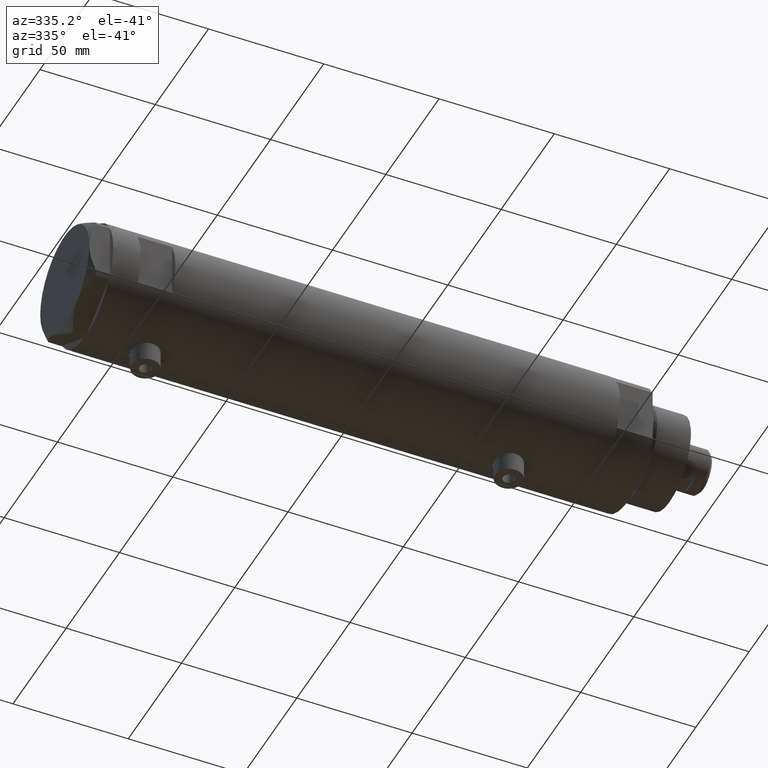
[diagram: clean part render]
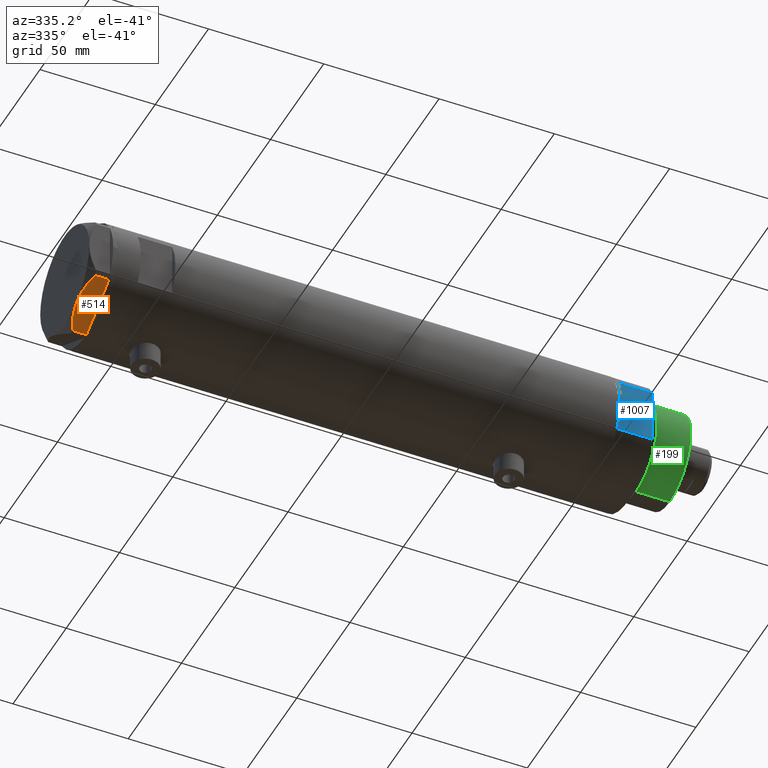
[diagram: same view with three faces highlighted in distinct colors, each labeled with its STEP entity id]
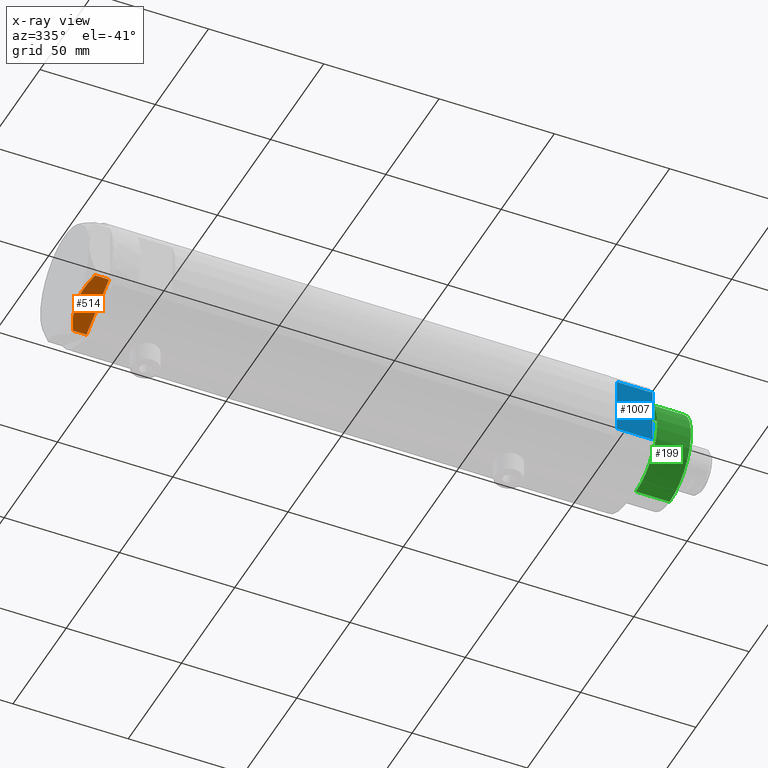
[diagram: x-ray of the same camera — body ghosted, the three highlighted faces saturated]
A machine part, auxiliary view with three faces highlighted in distinct colors.
The next image is the same camera in x-ray (body ghosted, the three faces saturated) — at least one of them is partly hidden behind the body in this view.
Their STEP definitions:

[orange] entity #514 — the highlighted planar face has unit normal (0, 0.5, 0.866).
#180 = ORIENTED_EDGE ( 'NONE', *, *, #4967, .T. ) ;
#218 = VECTOR ( 'NONE', #2629, 1000.000000000000227 ) ;
#244 = CARTESIAN_POINT ( 'NONE',  ( -11.04134848610939557, 20.18338686205100885, 9.000000000000094147 ) ) ;
#325 = VERTEX_POINT ( 'NONE', #1924 ) ;
#405 = EDGE_CURVE ( 'NONE', #4221, #325, #5150, .T. ) ;
#514 = ADVANCED_FACE ( 'NONE', ( #4026 ), #1182, .F. ) ;
#724 = DIRECTION ( 'NONE',  ( 0.000000000000000000, 0.000000000000000000, 1.000000000000000000 ) ) ;
#764 = CARTESIAN_POINT ( 'NONE',  ( -9.197898616902920210, 21.24770314027494678, 8.852712638955802404 ) ) ;
#798 = VERTEX_POINT ( 'NONE', #2704 ) ;
#868 = CARTESIAN_POINT ( 'NONE',  ( -21.20080365460318461, 14.31782268570115768, 6.431317509509388408 ) ) ;
#1020 = VERTEX_POINT ( 'NONE', #2781 ) ;
#1025 = DIRECTION ( 'NONE',  ( 0.000000000000000000, 0.000000000000000000, -1.000000000000000000 ) ) ;
#1102 = CARTESIAN_POINT ( 'NONE',  ( -4.320186229909880105, 24.06385169993494699, 7.629374868826106493 ) ) ;
#1182 = PLANE ( 'NONE',  #1458 ) ;
#1231 = VECTOR ( 'NONE', #724, 1000.000000000000000 ) ;
#1244 = CARTESIAN_POINT ( 'NONE',  ( -22.03005154776144181, 13.83905619136131371, 5.983800287807625295 ) ) ;
#1363 = EDGE_LOOP ( 'NONE', ( #3486, #1855, #1671, #4381, #3763, #2369, #180 ) ) ;
#1426 = LINE ( 'NONE', #2692, #5163 ) ;
#1458 = AXIS2_PLACEMENT_3D ( 'NONE', #3283, #1654, #4469 ) ;
#1617 = EDGE_CURVE ( 'NONE', #325, #798, #4852, .T. ) ;
#1654 = DIRECTION ( 'NONE',  ( 0.5000000000000009992, -0.8660254037844381525, 0.000000000000000000 ) ) ;
#1671 = ORIENTED_EDGE ( 'NONE', *, *, #1617, .F. ) ;
#1710 = CARTESIAN_POINT ( 'NONE',  ( -17.32831362639718975, 16.55360584592005679, 8.040681765829335248 ) ) ;
#1733 = EDGE_CURVE ( 'NONE', #4221, #3281, #1426, .T. ) ;
#1855 = ORIENTED_EDGE ( 'NONE', *, *, #3705, .T. ) ;
#1924 = CARTESIAN_POINT ( 'NONE',  ( -11.50000000000004441, 19.91858428704211548, 9.000000000000000000 ) ) ;
#1947 = CARTESIAN_POINT ( 'NONE',  ( -0.9699484522384356211, 25.99811238272282310, 5.983800287807548912 ) ) ;
#2188 = LINE ( 'NONE', #3420, #218 ) ;
#2201 = LINE ( 'NONE', #4251, #2245 ) ;
#2245 = VECTOR ( 'NONE', #3066, 1000.000000000000227 ) ;
#2306 = CARTESIAN_POINT ( 'NONE',  ( -22.03005154776143115, 13.83905619136131726, 9.000000000000000000 ) ) ;
#2369 = ORIENTED_EDGE ( 'NONE', *, *, #2596, .T. ) ;
#2392 = VERTEX_POINT ( 'NONE', #4792 ) ;
#2455 = CARTESIAN_POINT ( 'NONE',  ( -13.32175508098984729, 18.86679350063496585, 9.000000000000088818 ) ) ;
#2533 = EDGE_CURVE ( 'NONE', #3243, #2392, #3761, .T. ) ;
#2596 = EDGE_CURVE ( 'NONE', #3281, #1020, #2188, .T. ) ;
#2629 = DIRECTION ( 'NONE',  ( -0.8660254037844380415, -0.5000000000000008882, 0.000000000000000000 ) ) ;
#2692 = CARTESIAN_POINT ( 'NONE',  ( -0.9699484522385775076, 25.99811238272273783, 9.000000000000000000 ) ) ;
#2704 = CARTESIAN_POINT ( 'NONE',  ( -22.03005154776144181, 13.83905619136131371, 5.983800287807625295 ) ) ;
#2726 = CARTESIAN_POINT ( 'NONE',  ( -22.00000000000008171, 13.85640646055089498, 0.000000000000000000 ) ) ;
#2766 = CARTESIAN_POINT ( 'NONE',  ( -7.836767740116576952, 22.03355241838985279, 8.637313967156947214 ) ) ;
#2781 = CARTESIAN_POINT ( 'NONE',  ( -0.9999999999999089617, 25.98076211353316367, 0.000000000000000000 ) ) ;
#2901 = CARTESIAN_POINT ( 'NONE',  ( -11.50000000000004441, 19.91858428704211548, 9.000000000000000000 ) ) ;
#3053 = CARTESIAN_POINT ( 'NONE',  ( -11.50000000000004441, 19.91858428704211548, 9.000000000000000000 ) ) ;
#3066 = DIRECTION ( 'NONE',  ( -0.8660254037844380415, -0.5000000000000008882, 0.000000000000000000 ) ) ;
#3073 = VECTOR ( 'NONE', #4128, 1000.000000000000227 ) ;
#3083 = CARTESIAN_POINT ( 'NONE',  ( -0.9699484522384356211, 25.99811238272282310, 5.983800287807548912 ) ) ;
#3174 = CARTESIAN_POINT ( 'NONE',  ( -0.9699484522385772856, 25.99811238272273783, 0.000000000000000000 ) ) ;
#3243 = VERTEX_POINT ( 'NONE', #2726 ) ;
#3270 = CARTESIAN_POINT ( 'NONE',  ( -15.11535457301033247, 17.83125835109856183, 8.707651728477001640 ) ) ;
#3281 = VERTEX_POINT ( 'NONE', #3174 ) ;
#3283 = CARTESIAN_POINT ( 'NONE',  ( 0.000000000000000000, 26.55811238272274366, 9.000000000000000000 ) ) ;
#3420 = CARTESIAN_POINT ( 'NONE',  ( 0.000000000000000000, 26.55811238272274366, 0.000000000000000000 ) ) ;
#3486 = ORIENTED_EDGE ( 'NONE', *, *, #2533, .T. ) ;
#3636 = CARTESIAN_POINT ( 'NONE',  ( -17.77001848220191604, 16.29858742851882170, 7.892128867758443356 ) ) ;
#3705 = EDGE_CURVE ( 'NONE', #2392, #798, #5086, .T. ) ;
#3761 = LINE ( 'NONE', #4051, #3073 ) ;
#3763 = ORIENTED_EDGE ( 'NONE', *, *, #1733, .T. ) ;
#3843 = CARTESIAN_POINT ( 'NONE',  ( -10.58093321976963175, 20.44920774001128549, 8.981686407609499767 ) ) ;
#4026 = FACE_OUTER_BOUND ( 'NONE', #1363, .T. ) ;
#4051 = CARTESIAN_POINT ( 'NONE',  ( 0.000000000000000000, 26.55811238272274366, 0.000000000000000000 ) ) ;
#4054 = CARTESIAN_POINT ( 'NONE',  ( -20.35958612119326361, 14.80349985506240884, 6.844201024438374859 ) ) ;
#4128 = DIRECTION ( 'NONE',  ( -0.8660254037844380415, -0.5000000000000008882, 0.000000000000000000 ) ) ;
#4221 = VERTEX_POINT ( 'NONE', #3083 ) ;
#4251 = CARTESIAN_POINT ( 'NONE',  ( 0.000000000000000000, 26.55811238272274366, 0.000000000000000000 ) ) ;
#4267 = CARTESIAN_POINT ( 'NONE',  ( -6.946777556903624529, 22.54738849024398206, 8.426899937603780089 ) ) ;
#4314 = CARTESIAN_POINT ( 'NONE',  ( -9.656518383329848021, 20.98291889467267168, 8.907842277728436287 ) ) ;
#4381 = ORIENTED_EDGE ( 'NONE', *, *, #405, .F. ) ;
#4469 = DIRECTION ( 'NONE',  ( 0.8660254037844380415, 0.5000000000000008882, 0.000000000000000000 ) ) ;
#4553 = CARTESIAN_POINT ( 'NONE',  ( -19.07486218896994856, 15.54523556316589961, 7.397272853991406549 ) ) ;
#4709 = CARTESIAN_POINT ( 'NONE',  ( -2.626494320835632390, 25.04170517956325881, 6.877782426143454586 ) ) ;
#4792 = CARTESIAN_POINT ( 'NONE',  ( -22.03005154776142760, 13.83905619136131904, 0.000000000000000000 ) ) ;
#4852 = B_SPLINE_CURVE_WITH_KNOTS ( 'NONE', 3,
 ( #2901, #2455, #3270, #1710, #3636, #4921, #4553, #4054, #868, #1244 ),
 .UNSPECIFIED., .F., .F.,
 ( 4, 2, 2, 2, 4 ),
 ( 0.01376519981810312397, 0.01998941321701588544, 0.02154546656674408145, 0.02310151991647227399, 0.02621362661592866600 ),
 .UNSPECIFIED. ) ;
#4921 = CARTESIAN_POINT ( 'NONE',  ( -18.64279229058394804, 15.79469123530778951, 7.570552255229721084 ) ) ;
#4967 = EDGE_CURVE ( 'NONE', #1020, #3243, #2201, .T. ) ;
#5086 = LINE ( 'NONE', #2306, #1231 ) ;
#5150 = B_SPLINE_CURVE_WITH_KNOTS ( 'NONE', 3,
 ( #1947, #4709, #1102, #4267, #2766, #764, #4314, #3843, #244, #3053 ),
 .UNSPECIFIED., .F., .F.,
 ( 4, 2, 2, 2, 4 ),
 ( 0.001228959670438516723, 0.007497079744270820564, 0.01063113978118697227, 0.01219816979964504812, 0.01376519981810312397 ),
 .UNSPECIFIED. ) ;
#5163 = VECTOR ( 'NONE', #1025, 1000.000000000000000 ) ;

[blue] entity #1007 — the highlighted planar face has unit normal (-0, 1, 0).
#20 = CARTESIAN_POINT ( 'NONE',  ( -12.12435565298215145, -22.99999999999999645, 0.000000000000000000 ) ) ;
#181 = CARTESIAN_POINT ( 'NONE',  ( 12.12435565298215323, -22.99999999999999645, 0.000000000000000000 ) ) ;
#388 = PLANE ( 'NONE',  #4147 ) ;
#399 = VECTOR ( 'NONE', #1538, 1000.000000000000000 ) ;
#409 = ORIENTED_EDGE ( 'NONE', *, *, #3352, .F. ) ;
#477 = VECTOR ( 'NONE', #2518, 1000.000000000000000 ) ;
#623 = VECTOR ( 'NONE', #1778, 1000.000000000000000 ) ;
#677 = EDGE_CURVE ( 'NONE', #739, #3459, #1336, .T. ) ;
#739 = VERTEX_POINT ( 'NONE', #4305 ) ;
#1000 = DIRECTION ( 'NONE',  ( -1.000000000000000000, -0.000000000000000000, -0.000000000000000000 ) ) ;
#1007 = ADVANCED_FACE ( 'NONE', ( #3621 ), #388, .F. ) ;
#1336 = LINE ( 'NONE', #181, #623 ) ;
#1475 = CARTESIAN_POINT ( 'NONE',  ( -12.12435565298215145, -22.99999999999999645, 0.000000000000000000 ) ) ;
#1538 = DIRECTION ( 'NONE',  ( -1.000000000000000000, -0.000000000000000000, -0.000000000000000000 ) ) ;
#1622 = CARTESIAN_POINT ( 'NONE',  ( -12.12435565298215145, -22.99999999999999645, 0.000000000000000000 ) ) ;
#1778 = DIRECTION ( 'NONE',  ( -0.000000000000000000, -0.000000000000000000, 1.000000000000000000 ) ) ;
#1801 = CARTESIAN_POINT ( 'NONE',  ( -12.12435565298215501, -22.99999999999999645, 0.000000000000000000 ) ) ;
#1934 = LINE ( 'NONE', #5139, #399 ) ;
#2020 = ORIENTED_EDGE ( 'NONE', *, *, #4200, .F. ) ;
#2023 = ORIENTED_EDGE ( 'NONE', *, *, #677, .T. ) ;
#2518 = DIRECTION ( 'NONE',  ( -0.000000000000000000, -0.000000000000000000, 1.000000000000000000 ) ) ;
#2910 = ORIENTED_EDGE ( 'NONE', *, *, #3734, .T. ) ;
#2928 = VERTEX_POINT ( 'NONE', #3700 ) ;
#3016 = CARTESIAN_POINT ( 'NONE',  ( 12.12435565298215323, -22.99999999999999645, 15.50000000000000000 ) ) ;
#3144 = VERTEX_POINT ( 'NONE', #1801 ) ;
#3352 = EDGE_CURVE ( 'NONE', #3144, #2928, #3641, .T. ) ;
#3459 = VERTEX_POINT ( 'NONE', #3016 ) ;
#3621 = FACE_OUTER_BOUND ( 'NONE', #3807, .T. ) ;
#3641 = LINE ( 'NONE', #20, #477 ) ;
#3700 = CARTESIAN_POINT ( 'NONE',  ( -12.12435565298215323, -22.99999999999999645, 15.50000000000000000 ) ) ;
#3734 = EDGE_CURVE ( 'NONE', #3459, #2928, #1934, .T. ) ;
#3807 = EDGE_LOOP ( 'NONE', ( #2910, #409, #2020, #2023 ) ) ;
#3871 = LINE ( 'NONE', #1475, #5188 ) ;
#4147 = AXIS2_PLACEMENT_3D ( 'NONE', #1622, #4827, #4856 ) ;
#4200 = EDGE_CURVE ( 'NONE', #739, #3144, #3871, .T. ) ;
#4305 = CARTESIAN_POINT ( 'NONE',  ( 12.12435565298215323, -22.99999999999999645, 0.000000000000000000 ) ) ;
#4827 = DIRECTION ( 'NONE',  ( -0.000000000000000000, 1.000000000000000000, 0.000000000000000000 ) ) ;
#4856 = DIRECTION ( 'NONE',  ( 0.000000000000000000, -0.000000000000000000, 1.000000000000000000 ) ) ;
#5139 = CARTESIAN_POINT ( 'NONE',  ( -12.12435565298215145, -22.99999999999999645, 15.50000000000000000 ) ) ;
#5188 = VECTOR ( 'NONE', #1000, 1000.000000000000000 ) ;

[green] entity #199 — the highlighted cylindrical surface (partial cylindrical patch) has radius 20 mm, axis along (-1, -0, 0).
#143 = LINE ( 'NONE', #2513, #2983 ) ;
#199 = ADVANCED_FACE ( 'NONE', ( #3432 ), #4136, .T. ) ;
#251 = CARTESIAN_POINT ( 'NONE',  ( 19.99999999999999645, 2.449293598294706119E-15, 33.50000000000000000 ) ) ;
#535 = DIRECTION ( 'NONE',  ( -0.000000000000000000, -0.000000000000000000, -1.000000000000000000 ) ) ;
#564 = DIRECTION ( 'NONE',  ( -0.000000000000000000, -0.000000000000000000, -1.000000000000000000 ) ) ;
#643 = CARTESIAN_POINT ( 'NONE',  ( 19.99999999999999645, 2.449293598294706119E-15, 33.50000000000000000 ) ) ;
#656 = DIRECTION ( 'NONE',  ( 1.000000000000000000, 0.000000000000000000, 0.000000000000000000 ) ) ;
#769 = EDGE_CURVE ( 'NONE', #4745, #3697, #3561, .T. ) ;
#948 = CARTESIAN_POINT ( 'NONE',  ( 0.000000000000000000, 0.000000000000000000, 33.50000000000000000 ) ) ;
#1062 = ORIENTED_EDGE ( 'NONE', *, *, #2058, .F. ) ;
#1158 = VERTEX_POINT ( 'NONE', #251 ) ;
#1196 = EDGE_CURVE ( 'NONE', #1158, #3697, #4609, .T. ) ;
#1254 = ORIENTED_EDGE ( 'NONE', *, *, #1196, .F. ) ;
#1521 = DIRECTION ( 'NONE',  ( -0.000000000000000000, -0.000000000000000000, 1.000000000000000000 ) ) ;
#1712 = VECTOR ( 'NONE', #3818, 1000.000000000000000 ) ;
#1767 = CARTESIAN_POINT ( 'NONE',  ( 0.000000000000000000, 0.000000000000000000, 33.50000000000000000 ) ) ;
#2040 = EDGE_CURVE ( 'NONE', #4022, #4745, #143, .T. ) ;
#2058 = EDGE_CURVE ( 'NONE', #4022, #1158, #2482, .T. ) ;
#2060 = EDGE_LOOP ( 'NONE', ( #1254, #1062, #4233, #4512 ) ) ;
#2170 = DIRECTION ( 'NONE',  ( 1.000000000000000000, 0.000000000000000000, 0.000000000000000000 ) ) ;
#2289 = CARTESIAN_POINT ( 'NONE',  ( 0.000000000000000000, 0.000000000000000000, 18.87384048104053846 ) ) ;
#2482 = CIRCLE ( 'NONE', #2567, 19.99999999999999645 ) ;
#2513 = CARTESIAN_POINT ( 'NONE',  ( -19.99999999999999645, 0.000000000000000000, 33.50000000000000000 ) ) ;
#2560 = CARTESIAN_POINT ( 'NONE',  ( -19.99999999999999645, 0.000000000000000000, 33.50000000000000000 ) ) ;
#2567 = AXIS2_PLACEMENT_3D ( 'NONE', #948, #4952, #2170 ) ;
#2762 = CARTESIAN_POINT ( 'NONE',  ( -19.99999999999999645, 0.000000000000000000, 18.87384048104053846 ) ) ;
#2983 = VECTOR ( 'NONE', #564, 1000.000000000000000 ) ;
#3142 = AXIS2_PLACEMENT_3D ( 'NONE', #2289, #1521, #656 ) ;
#3373 = DIRECTION ( 'NONE',  ( -1.000000000000000000, 0.000000000000000000, 0.000000000000000000 ) ) ;
#3432 = FACE_OUTER_BOUND ( 'NONE', #2060, .T. ) ;
#3485 = CARTESIAN_POINT ( 'NONE',  ( 19.99999999999999645, 2.449293598294706119E-15, 18.87384048104053846 ) ) ;
#3561 = CIRCLE ( 'NONE', #3142, 19.99999999999999645 ) ;
#3697 = VERTEX_POINT ( 'NONE', #3485 ) ;
#3723 = AXIS2_PLACEMENT_3D ( 'NONE', #1767, #535, #3373 ) ;
#3818 = DIRECTION ( 'NONE',  ( -0.000000000000000000, -0.000000000000000000, -1.000000000000000000 ) ) ;
#4022 = VERTEX_POINT ( 'NONE', #2560 ) ;
#4136 = CYLINDRICAL_SURFACE ( 'NONE', #3723, 19.99999999999999645 ) ;
#4233 = ORIENTED_EDGE ( 'NONE', *, *, #2040, .T. ) ;
#4512 = ORIENTED_EDGE ( 'NONE', *, *, #769, .T. ) ;
#4609 = LINE ( 'NONE', #643, #1712 ) ;
#4745 = VERTEX_POINT ( 'NONE', #2762 ) ;
#4952 = DIRECTION ( 'NONE',  ( 0.000000000000000000, 0.000000000000000000, 1.000000000000000000 ) ) ;